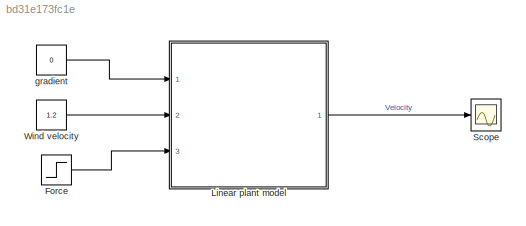
MODEL slx_bd31e173fc1e
KIND model
CONFIG AbsTol = auto
CONFIG EnableMultiTasking = off
CONFIG FixedStep = auto
CONFIG MaxStep = auto
CONFIG MinStep = auto
CONFIG RelTol = 1e-3
CONFIG SampleTimeConstraint = Unconstrained
CONFIG SolverName = FixedStepAuto
CONFIG StartTime = 0.0
CONFIG StopTime = 5
BLOCK [Step] Force
  SampleTime = 0
  Time = 3
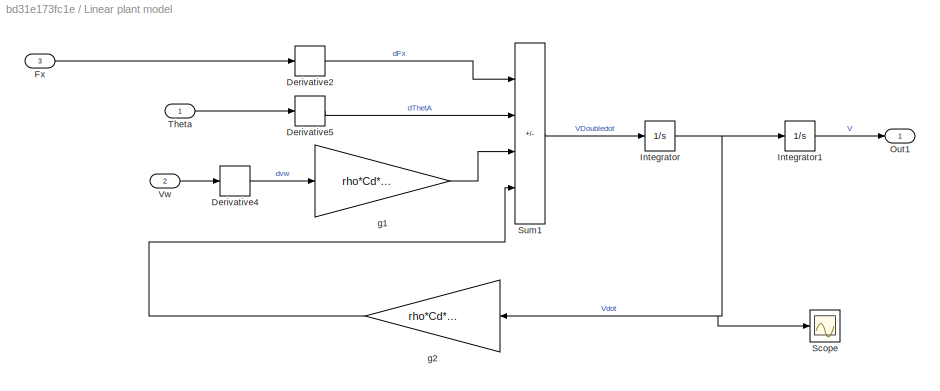
BLOCK [SubSystem] Linear plant model
  Ports = [3, 1]
  RequestExecContextInheritance = off
BLOCK [Derivative] Linear plant model/Derivative2
BLOCK [Derivative] Linear plant model/Derivative4
BLOCK [Derivative] Linear plant model/Derivative5
BLOCK [Inport] Linear plant model/Fx
  Port = 3
BLOCK [Integrator] Linear plant model/Integrator
  Ports = [1, 1]
BLOCK [Integrator] Linear plant model/Integrator1
  Ports = [1, 1]
BLOCK [Outport] Linear plant model/Out1
BLOCK [Scope] Linear plant model/Scope
  Floating = off
  NumInputPorts = 1
  Ports = [1]
  ScopeSpecificationString = Simulink.scopes.TimeScopeBlockCfg('CurrentConfiguration', extmgr.ConfigurationSet(extmgr.Configuration('Core','General UI',true),extmgr.Configuration('Core','Source UI',true),extmgr.Configuration('Sources','WiredSimulink',true,'DataLoggingVariableName','ScopeData1'),extmgr.Configuration('Visuals','Time Domain',true,'SerializedDisplays',{struct('MinYLimReal','-0.42666','MaxYLimReal','0.74915','YLab...<+1424ch>
BLOCK [Sum] Linear plant model/Sum1
  IconShape = rectangular
  Inputs = +-+-
  Ports = [4, 1]
BLOCK [Inport] Linear plant model/Theta
BLOCK [Inport] Linear plant model/Vw
  Port = 2
BLOCK [Gain] Linear plant model/g1
  Gain = rho*Cd*A*[v_0-vw_0]
BLOCK [Gain] Linear plant model/g2
  Gain = rho*Cd*A*[v_0-vw_0]
BLOCK [Scope] Scope
  Floating = off
  NumInputPorts = 1
  Ports = [1]
  ScopeSpecificationString = Simulink.scopes.TimeScopeBlockCfg('CurrentConfiguration', extmgr.ConfigurationSet(extmgr.Configuration('Core','General UI',true),extmgr.Configuration('Core','Source UI',true),extmgr.Configuration('Sources','WiredSimulink',true,'DataLoggingVariableName','ScopeData1'),extmgr.Configuration('Visuals','Time Domain',true,'SerializedDisplays',{struct('MinYLimReal','-0.02457','MaxYLimReal','0.03025','YLab...<+1400ch>
BLOCK [Constant] Wind velocity
  Value = 1.2
BLOCK [Constant] gradient
  Value = 0
LINE Force:1 -> Linear plant model:3
LINE Linear plant model/Derivative2:1 -> Linear plant model/Sum1:1
LINE Linear plant model/Derivative4:1 -> Linear plant model/g1:1
LINE Linear plant model/Derivative5:1 -> Linear plant model/Sum1:2
LINE Linear plant model/Fx:1 -> Linear plant model/Derivative2:1
LINE Linear plant model/Integrator1:1 -> Linear plant model/Out1:1
NET Linear plant model/Integrator:1 -> Linear plant model/Integrator1:1, Linear plant model/Scope:1, Linear plant model/g2:1
LINE Linear plant model/Sum1:1 -> Linear plant model/Integrator:1
LINE Linear plant model/Theta:1 -> Linear plant model/Derivative5:1
LINE Linear plant model/Vw:1 -> Linear plant model/Derivative4:1
LINE Linear plant model/g1:1 -> Linear plant model/Sum1:3
LINE Linear plant model/g2:1 -> Linear plant model/Sum1:4
LINE Linear plant model:1 -> Scope:1
LINE Wind velocity:1 -> Linear plant model:2
LINE gradient:1 -> Linear plant model:1
note: NET lines group one-source signal fan-out (src -> all destinations, sorted); 1:1 wires keep LINE
